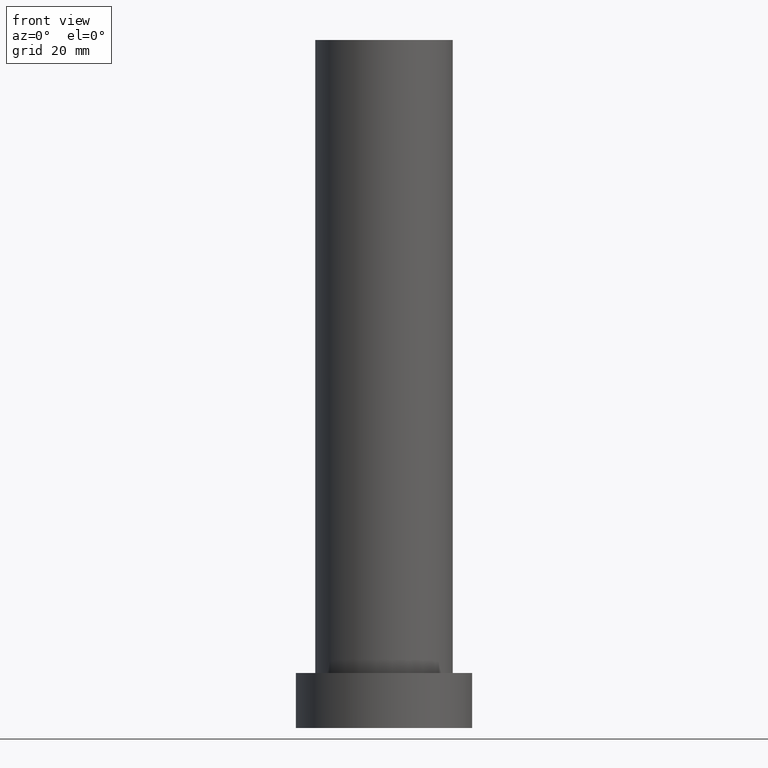
[diagram: clean part render]
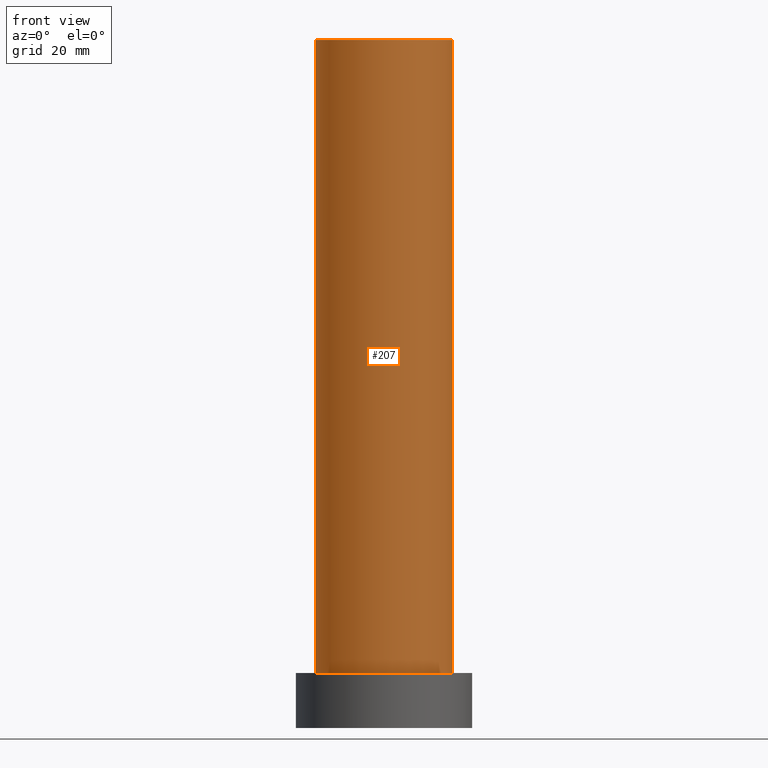
[diagram: same view with one face highlighted and labeled with its STEP entity id]
A machine part, front view. The second image highlights one B-rep face of the part: STEP entity #207.
In plain terms, the highlighted cylindrical surface (partial cylindrical patch) has radius 12.5 mm, axis along (-0, -0, -1).
Its self-contained STEP definition (entity closure, byte-faithful):
#1 = DIRECTION ( 'NONE',  ( -1.000000000000000000, 0.000000000000000000, 0.000000000000000000 ) ) ;
#9 = DIRECTION ( 'NONE',  ( 1.000000000000000000, 0.000000000000000000, 0.000000000000000000 ) ) ;
#10 = AXIS2_PLACEMENT_3D ( 'NONE', #58, #194, #1 ) ;
#23 = CARTESIAN_POINT ( 'NONE',  ( 12.50000000000000000, 1.530808498934191521E-15, 10.00000000000000000 ) ) ;
#28 = VECTOR ( 'NONE', #250, 1000.000000000000000 ) ;
#32 = AXIS2_PLACEMENT_3D ( 'NONE', #223, #188, #50 ) ;
#50 = DIRECTION ( 'NONE',  ( 1.000000000000000000, 0.000000000000000000, 0.000000000000000000 ) ) ;
#51 = DIRECTION ( 'NONE',  ( 0.000000000000000000, 0.000000000000000000, 1.000000000000000000 ) ) ;
#57 = EDGE_CURVE ( 'NONE', #101, #251, #151, .T. ) ;
#58 = CARTESIAN_POINT ( 'NONE',  ( 0.000000000000000000, 0.000000000000000000, 125.0000000000000000 ) ) ;
#66 = DIRECTION ( 'NONE',  ( -0.000000000000000000, -0.000000000000000000, -1.000000000000000000 ) ) ;
#69 = ORIENTED_EDGE ( 'NONE', *, *, #201, .F. ) ;
#89 = CARTESIAN_POINT ( 'NONE',  ( 0.000000000000000000, 0.000000000000000000, 10.00000000000000000 ) ) ;
#95 = VERTEX_POINT ( 'NONE', #23 ) ;
#101 = VERTEX_POINT ( 'NONE', #159 ) ;
#106 = CARTESIAN_POINT ( 'NONE',  ( -12.50000000000000000, 0.000000000000000000, 125.0000000000000000 ) ) ;
#111 = EDGE_CURVE ( 'NONE', #101, #198, #134, .T. ) ;
#114 = CIRCLE ( 'NONE', #143, 12.50000000000000000 ) ;
#119 = CYLINDRICAL_SURFACE ( 'NONE', #10, 12.50000000000000000 ) ;
#123 = VECTOR ( 'NONE', #66, 1000.000000000000000 ) ;
#134 = LINE ( 'NONE', #106, #123 ) ;
#143 = AXIS2_PLACEMENT_3D ( 'NONE', #89, #51, #9 ) ;
#151 = CIRCLE ( 'NONE', #32, 12.50000000000000000 ) ;
#159 = CARTESIAN_POINT ( 'NONE',  ( -12.50000000000000000, 0.000000000000000000, 125.0000000000000000 ) ) ;
#161 = ORIENTED_EDGE ( 'NONE', *, *, #111, .T. ) ;
#163 = EDGE_CURVE ( 'NONE', #198, #95, #114, .T. ) ;
#165 = CARTESIAN_POINT ( 'NONE',  ( -12.50000000000000000, 0.000000000000000000, 10.00000000000000000 ) ) ;
#188 = DIRECTION ( 'NONE',  ( 0.000000000000000000, 0.000000000000000000, 1.000000000000000000 ) ) ;
#189 = EDGE_LOOP ( 'NONE', ( #69, #246, #161, #232 ) ) ;
#194 = DIRECTION ( 'NONE',  ( -0.000000000000000000, -0.000000000000000000, -1.000000000000000000 ) ) ;
#198 = VERTEX_POINT ( 'NONE', #165 ) ;
#201 = EDGE_CURVE ( 'NONE', #251, #95, #248, .T. ) ;
#207 = ADVANCED_FACE ( 'NONE', ( #254 ), #119, .T. ) ;
#223 = CARTESIAN_POINT ( 'NONE',  ( 0.000000000000000000, 0.000000000000000000, 125.0000000000000000 ) ) ;
#230 = CARTESIAN_POINT ( 'NONE',  ( 12.50000000000000000, 1.530808498934191521E-15, 125.0000000000000000 ) ) ;
#231 = CARTESIAN_POINT ( 'NONE',  ( 12.50000000000000000, 1.530808498934191521E-15, 125.0000000000000000 ) ) ;
#232 = ORIENTED_EDGE ( 'NONE', *, *, #163, .T. ) ;
#246 = ORIENTED_EDGE ( 'NONE', *, *, #57, .F. ) ;
#248 = LINE ( 'NONE', #231, #28 ) ;
#250 = DIRECTION ( 'NONE',  ( -0.000000000000000000, -0.000000000000000000, -1.000000000000000000 ) ) ;
#251 = VERTEX_POINT ( 'NONE', #230 ) ;
#254 = FACE_OUTER_BOUND ( 'NONE', #189, .T. ) ;